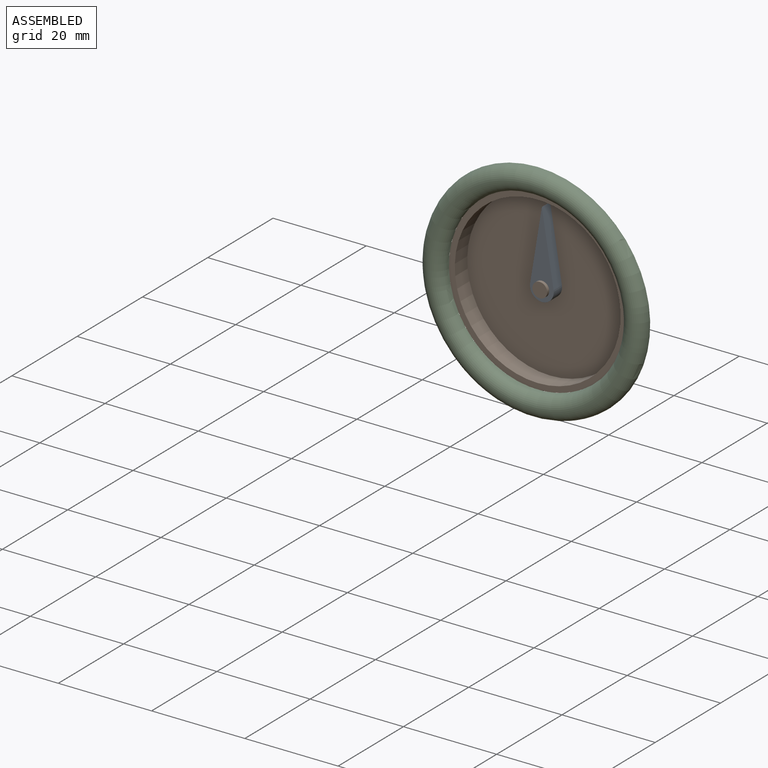
[diagram: assembled view]
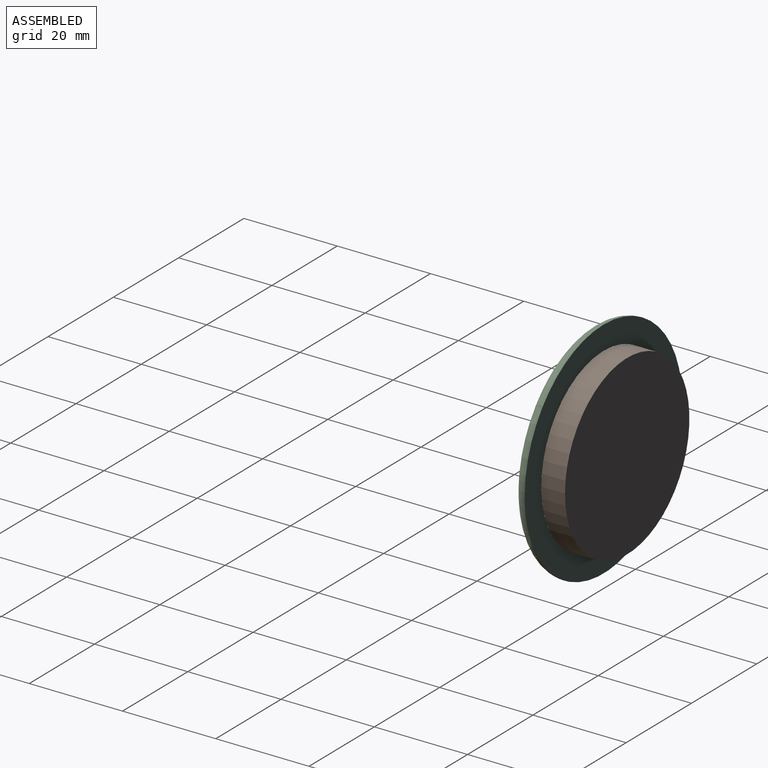
[diagram: assembled view, second angle]
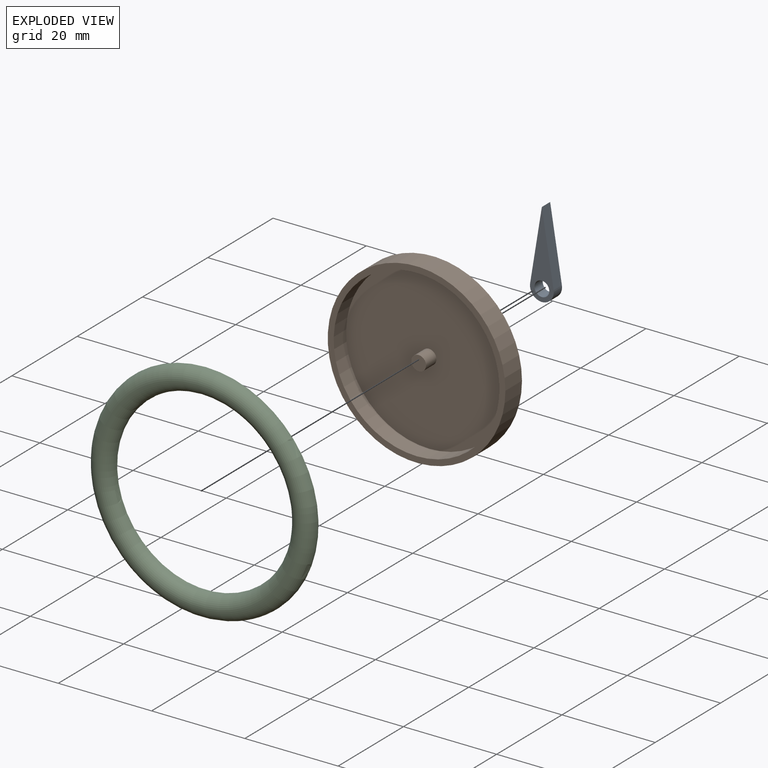
[diagram: exploded view]
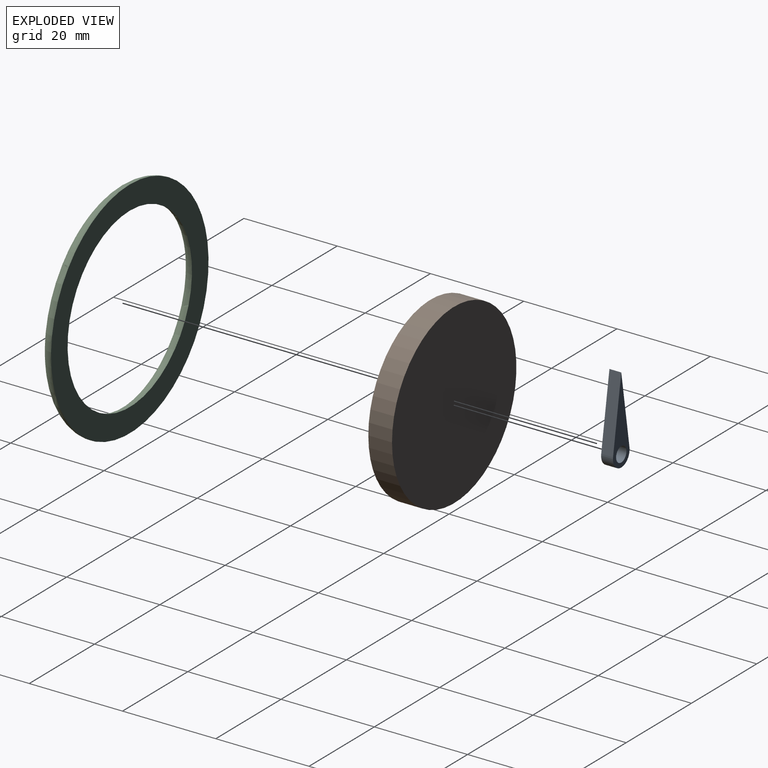
[diagram: exploded view, second angle]
ASSEMBLY  parts=3 mates=2
PART A: 6 faces, bbox 5.1x2.5x18.4 mm
  f0: cylinder r=2.55mm len=5.1mm, axis (0,1,0), area 22.4mm2, adj f2,f3,f4,f5
  f1: cylinder r=1.59mm len=3.18mm, axis (0,1,0), area 25.3mm2, adj f2,f3
  f2: plane 18.42x5.1mm, normal (0,-1,0), area 43.2mm2, adj f0,f1,f4,f5
  f3: plane 18.42x5.1mm, normal (0,1,0), area 43.2mm2, adj f0,f1,f4,f5
  f4: plane 15.47x2.54mm, normal (0.99,0,0.16), area 39.8mm2, adj f0,f2,f3,f5
  f5: plane 15.47x2.54mm, normal (-0.99,0,0.16), area 39.8mm2, adj f0,f2,f3,f4
PART B: 7 faces, bbox 38.1x5.1x38.1 mm
  f0: cylinder r=19.05mm len=38.1mm, axis (0,1,0), area 608mm2, adj f1,f2
  f1: plane 38.1x38.1mm, normal (0,-1,0), area 146.9mm2, adj f0,f3
  f2: plane 38.1x38.1mm, normal (0,1,0), area 1140.1mm2, adj f0
  f3: cylinder r=17.78mm len=35.56mm, axis (0,1,0), area 425.6mm2, adj f1,f4
  f4: plane 35.56x35.56mm, normal (0,-1,0), area 985.2mm2, adj f3,f5
  f5: cylinder r=1.59mm len=3.18mm, axis (0,1,0), area 31.7mm2, adj f4,f6
  f6: plane 3.18x3.18mm, normal (0,-1,0), area 7.9mm2, adj f5
PART C: 2 faces, bbox 52.2x4.3x52.2 mm
  f0: plane 48.26x48.26mm, normal (0,1,0), area 689.1mm2, adj f1
  f1: torus R=21.59mm, axis (0,1,0), area 1082.4mm2, adj f0
PLACE A t=(-13.57,0.18,-11.85)mm
PLACE B t=(-13.57,2.72,-11.85)mm
PLACE C t=(-13.57,-2.36,-11.85)mm
MATE fastened C.f1 <-> B.f0  axis (0,1,0) through (-13.57,-2.36,-11.85)mm
MATE revolute A.f0 <-> B.f0  axis (0,1,0) through (-13.57,1.45,-11.85)mm
